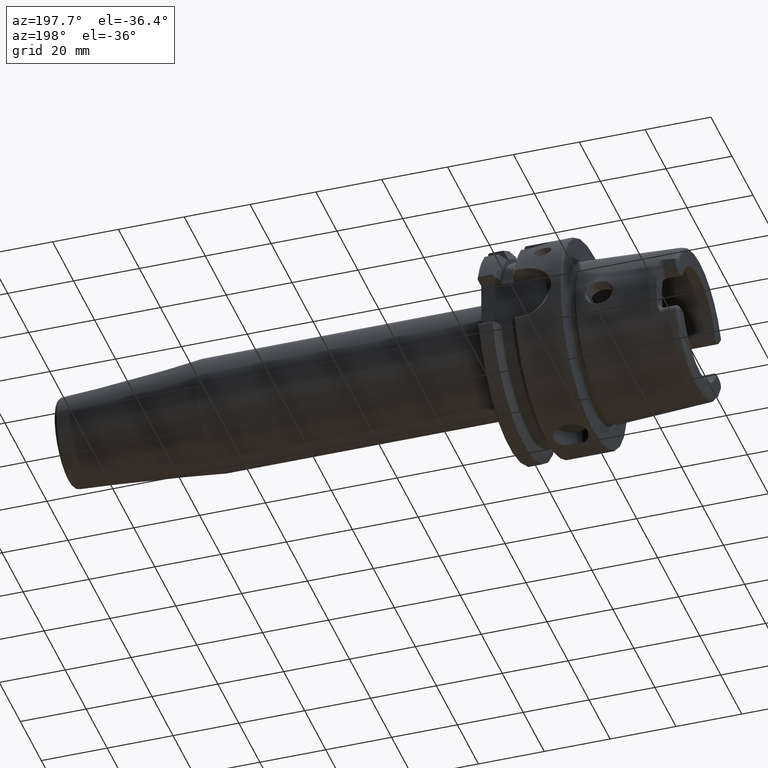
[diagram: clean part render]
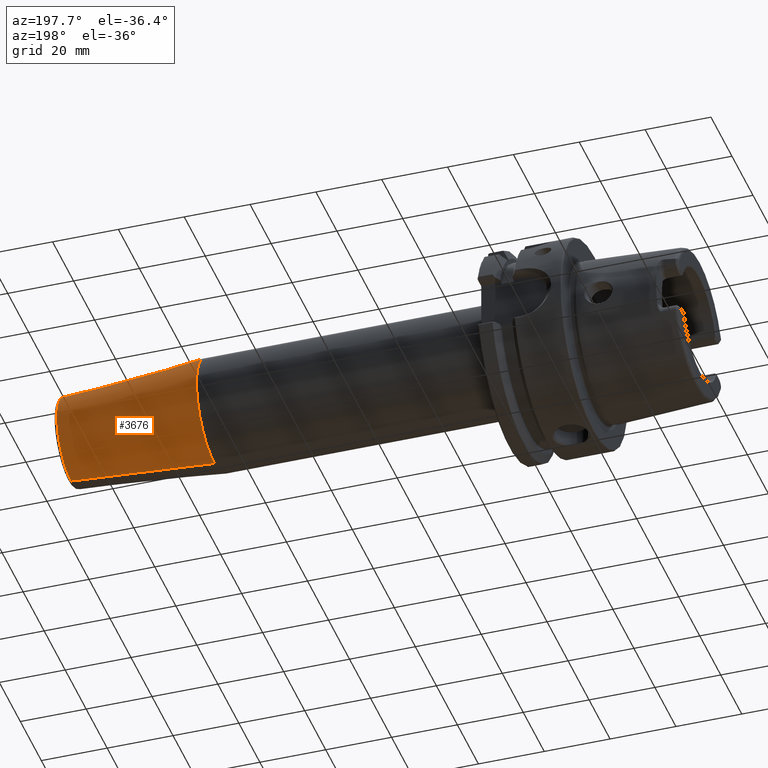
[diagram: same view with one face highlighted and labeled with its STEP entity id]
A machine part, auxiliary view. The second image highlights one B-rep face of the part: STEP entity #3676.
In plain terms, the highlighted conical surface has half-angle 4.5 deg.
Its self-contained STEP definition (entity closure, byte-faithful):
#589=CARTESIAN_POINT('',(1.590784590957E2,0.E0,0.E0));
#590=DIRECTION('',(1.E0,0.E0,0.E0));
#591=DIRECTION('',(0.E0,0.E0,-1.E0));
#592=AXIS2_PLACEMENT_3D('',#589,#590,#591);
#594=DIRECTION('',(-9.969173337331E-1,0.E0,-7.845909572785E-2));
#595=VECTOR('',#594,4.368484145948E1);
#596=CARTESIAN_POINT('',(1.590784590957E2,0.E0,-1.357252684208E1));
#597=LINE('',#596,#595);
#598=DIRECTION('',(-9.969173337331E-1,0.E0,7.845909572785E-2));
#599=VECTOR('',#598,4.368484145948E1);
#600=CARTESIAN_POINT('',(1.590784590957E2,0.E0,1.357252684208E1));
#601=LINE('',#600,#599);
#620=CARTESIAN_POINT('',(1.155282834234E2,0.E0,0.E0));
#621=DIRECTION('',(1.E0,0.E0,0.E0));
#622=DIRECTION('',(0.E0,0.E0,-1.E0));
#623=AXIS2_PLACEMENT_3D('',#620,#621,#622);
#2955=CARTESIAN_POINT('',(1.590784590957E2,0.E0,-1.357252684208E1));
#2957=VERTEX_POINT('',#2955);
#2958=CARTESIAN_POINT('',(1.155282834234E2,0.E0,-1.7E1));
#2959=VERTEX_POINT('',#2958);
#2977=CARTESIAN_POINT('',(1.590784590957E2,0.E0,1.357252684208E1));
#2979=VERTEX_POINT('',#2977);
#2980=CARTESIAN_POINT('',(1.155282834234E2,0.E0,1.7E1));
#2981=VERTEX_POINT('',#2980);
#3662=CARTESIAN_POINT('',(1.373033712596E2,0.E0,0.E0));
#3663=DIRECTION('',(-1.E0,0.E0,0.E0));
#3664=DIRECTION('',(0.E0,0.E0,-1.E0));
#3665=AXIS2_PLACEMENT_3D('',#3662,#3663,#3664);
#3666=CONICAL_SURFACE('',#3665,1.528626342104E1,4.5E0);
#3668=ORIENTED_EDGE('',*,*,#3667,.F.);
#3669=ORIENTED_EDGE('',*,*,#3657,.T.);
#3671=ORIENTED_EDGE('',*,*,#3670,.T.);
#3673=ORIENTED_EDGE('',*,*,#3672,.F.);
#3674=EDGE_LOOP('',(#3668,#3669,#3671,#3673));
#3675=FACE_OUTER_BOUND('',#3674,.F.);
#3676=ADVANCED_FACE('',(#3675),#3666,.T.);
#593=CIRCLE('',#592,1.357252684208E1);
#624=CIRCLE('',#623,1.7E1);
#3657=EDGE_CURVE('',#2957,#2979,#593,.T.);
#3667=EDGE_CURVE('',#2957,#2959,#597,.T.);
#3670=EDGE_CURVE('',#2979,#2981,#601,.T.);
#3672=EDGE_CURVE('',#2959,#2981,#624,.T.);